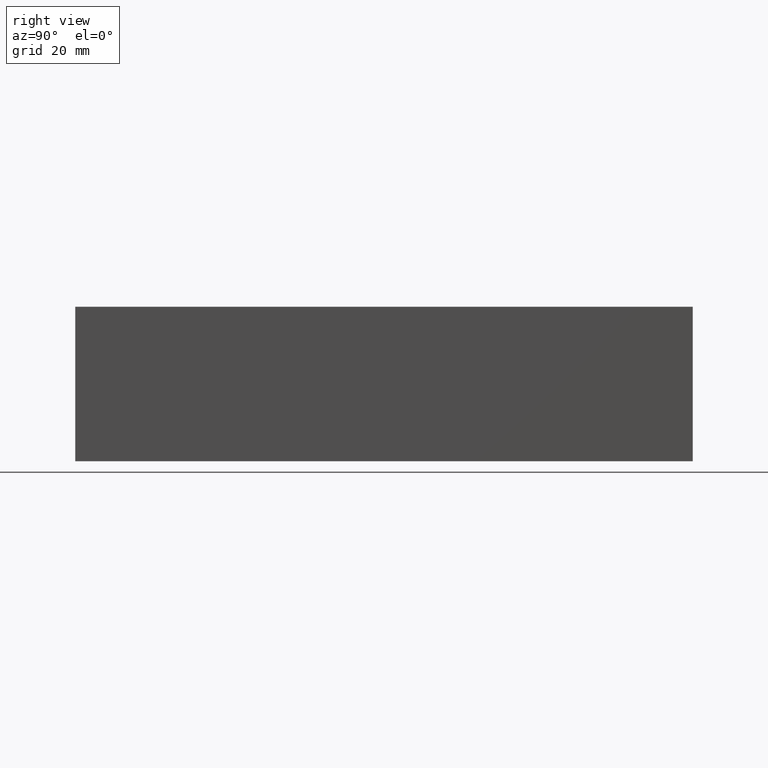
[diagram: clean part render]
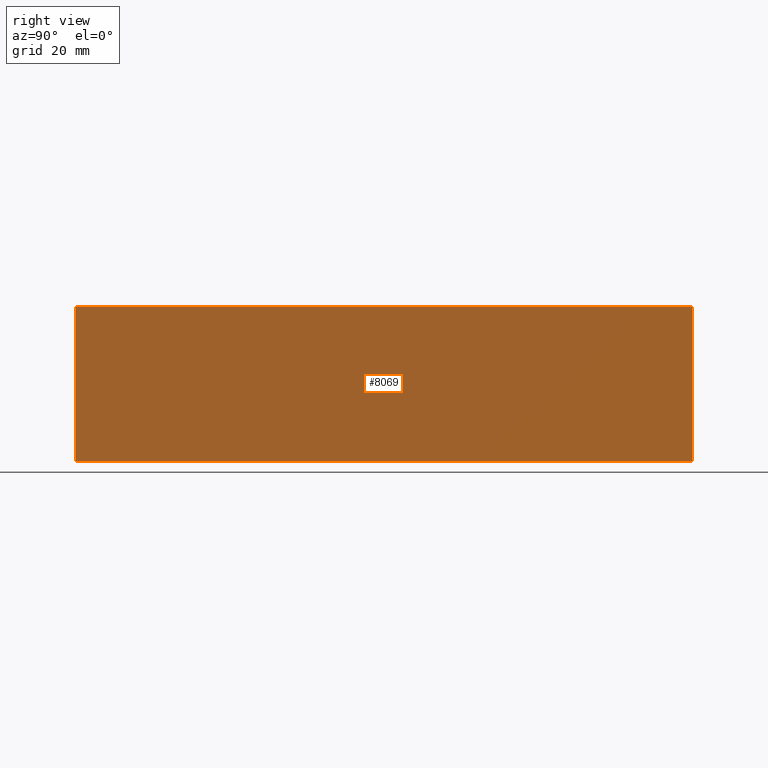
[diagram: same view with one face highlighted and labeled with its STEP entity id]
A machine part, right view. The second image highlights one B-rep face of the part: STEP entity #8069.
In plain terms, the highlighted planar face has unit normal (1, 0, 0).
Its self-contained STEP definition (entity closure, byte-faithful):
#927=FACE_OUTER_BOUND('',#1381,.T.);
#1381=EDGE_LOOP('',(#7016,#7017,#7018,#7019));
#1761=LINE('',#12187,#2565);
#2212=LINE('',#13575,#3016);
#2213=LINE('',#13577,#3017);
#2214=LINE('',#13578,#3018);
#2565=VECTOR('',#9131,10.);
#3016=VECTOR('',#10322,10.);
#3017=VECTOR('',#10325,10.);
#3018=VECTOR('',#10326,10.);
#3342=VERTEX_POINT('',#12184);
#3343=VERTEX_POINT('',#12186);
#3781=VERTEX_POINT('',#13571);
#3782=VERTEX_POINT('',#13573);
#4267=EDGE_CURVE('',#3342,#3343,#1761,.T.);
#4880=EDGE_CURVE('',#3781,#3782,#2212,.T.);
#4881=EDGE_CURVE('',#3342,#3781,#2213,.T.);
#4882=EDGE_CURVE('',#3343,#3782,#2214,.T.);
#7016=ORIENTED_EDGE('',*,*,#4881,.T.);
#7017=ORIENTED_EDGE('',*,*,#4880,.T.);
#7018=ORIENTED_EDGE('',*,*,#4882,.F.);
#7019=ORIENTED_EDGE('',*,*,#4267,.F.);
#7347=PLANE('',#8563);
#8069=ADVANCED_FACE('',(#927),#7347,.T.);
#8563=AXIS2_PLACEMENT_3D('',#13576,#10323,#10324);
#9131=DIRECTION('',(0.,0.,1.));
#10322=DIRECTION('',(0.,0.,1.));
#10323=DIRECTION('center_axis',(1.,0.,0.));
#10324=DIRECTION('ref_axis',(0.,1.,0.));
#10325=DIRECTION('',(0.,1.,0.));
#10326=DIRECTION('',(0.,1.,0.));
#12184=CARTESIAN_POINT('',(88.9,0.,0.));
#12186=CARTESIAN_POINT('',(88.9,0.,38.1));
#12187=CARTESIAN_POINT('',(88.9,0.,0.));
#13571=CARTESIAN_POINT('',(88.9,152.4,0.));
#13573=CARTESIAN_POINT('',(88.9,152.4,38.1));
#13575=CARTESIAN_POINT('',(88.9,152.4,0.));
#13576=CARTESIAN_POINT('Origin',(88.9,0.,0.));
#13577=CARTESIAN_POINT('',(88.9,0.,0.));
#13578=CARTESIAN_POINT('',(88.9,0.,38.1));